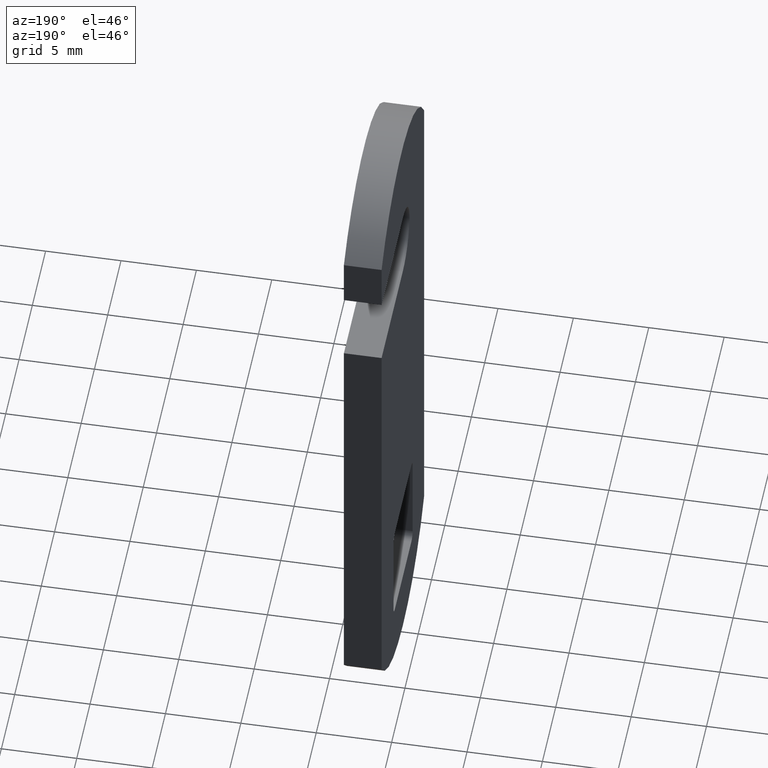
[diagram: clean part render]
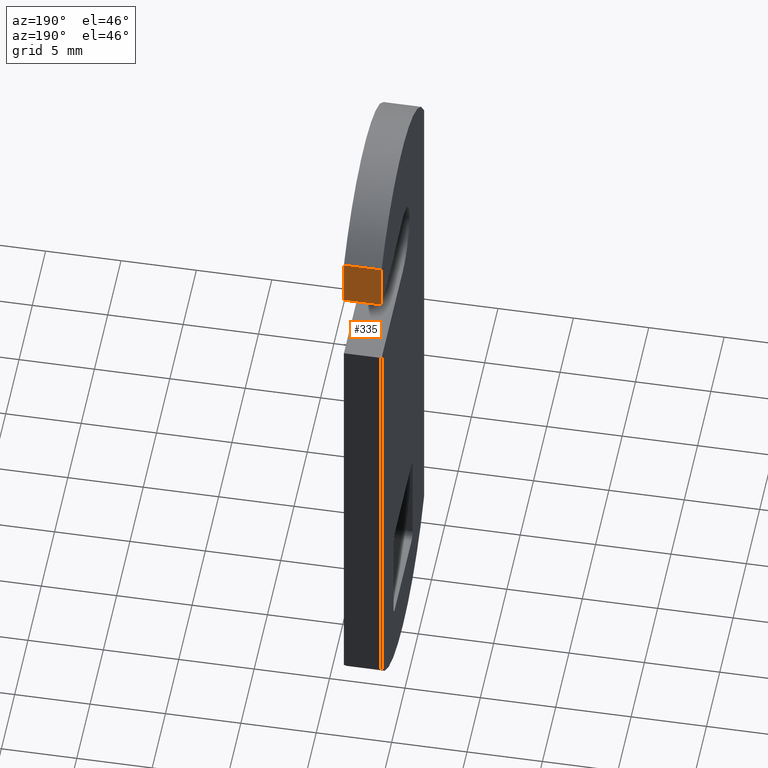
[diagram: same view with one face highlighted and labeled with its STEP entity id]
A machine part, auxiliary view. The second image highlights one B-rep face of the part: STEP entity #335.
In plain terms, the highlighted planar face has unit normal (0, 1, 0).
Its self-contained STEP definition (entity closure, byte-faithful):
#42=FACE_OUTER_BOUND('',#60,.T.);
#60=EDGE_LOOP('',(#240,#241,#242,#243));
#81=LINE('',#498,#115);
#87=LINE('',#513,#121);
#88=LINE('',#515,#122);
#89=LINE('',#516,#123);
#115=VECTOR('',#394,2.5);
#121=VECTOR('',#410,3.27849939249741);
#122=VECTOR('',#411,2.5);
#123=VECTOR('',#412,3.27849939249741);
#148=VERTEX_POINT('',#494);
#150=VERTEX_POINT('',#497);
#154=VERTEX_POINT('',#512);
#155=VERTEX_POINT('',#514);
#181=EDGE_CURVE('',#150,#148,#81,.T.);
#189=EDGE_CURVE('',#154,#148,#87,.T.);
#190=EDGE_CURVE('',#155,#154,#88,.T.);
#191=EDGE_CURVE('',#155,#150,#89,.T.);
#240=ORIENTED_EDGE('',*,*,#181,.T.);
#241=ORIENTED_EDGE('',*,*,#189,.F.);
#242=ORIENTED_EDGE('',*,*,#190,.F.);
#243=ORIENTED_EDGE('',*,*,#191,.T.);
#323=PLANE('',#357);
#335=ADVANCED_FACE('',(#42),#323,.T.);
#357=AXIS2_PLACEMENT_3D('',#511,#408,#409);
#394=DIRECTION('',(-1.,0.,0.));
#408=DIRECTION('center_axis',(0.,1.,0.));
#409=DIRECTION('ref_axis',(0.,0.,1.));
#410=DIRECTION('',(0.,0.,-1.));
#411=DIRECTION('',(-1.,0.,0.));
#412=DIRECTION('',(0.,0.,-1.));
#494=CARTESIAN_POINT('',(-34.0000000687006,8.09958979626273,30.1));
#497=CARTESIAN_POINT('',(-31.5000000687006,8.09958979626273,30.1));
#498=CARTESIAN_POINT('',(-31.5000000687006,8.09958979626273,30.1));
#511=CARTESIAN_POINT('Origin',(-31.5000000687006,8.09958979626273,27.8041827800906));
#512=CARTESIAN_POINT('',(-34.0000000687006,8.09958979626273,33.3784993924974));
#513=CARTESIAN_POINT('',(-34.0000000687006,8.09958979626273,27.8041827800906));
#514=CARTESIAN_POINT('',(-31.5000000687006,8.09958979626273,33.3784993924974));
#515=CARTESIAN_POINT('',(-31.5000000687006,8.09958979626273,33.3784993924974));
#516=CARTESIAN_POINT('',(-31.5000000687006,8.09958979626273,27.8041827800906));